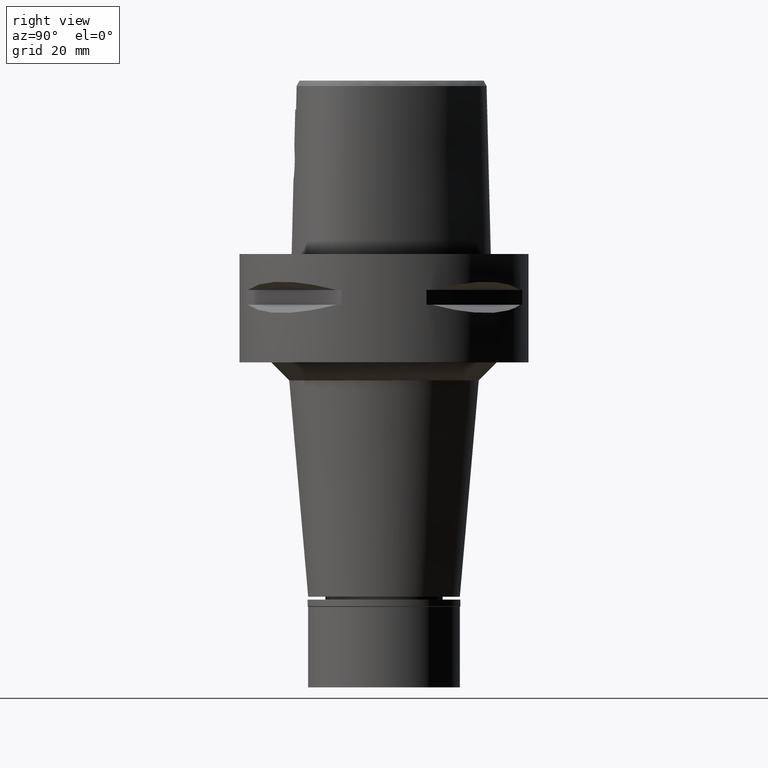
[diagram: clean part render]
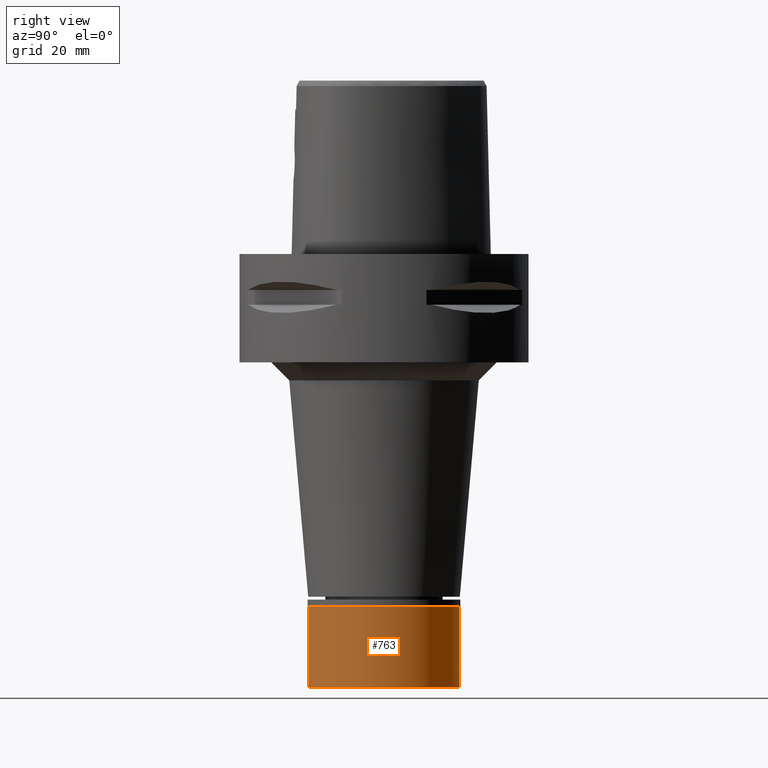
[diagram: same view with one face highlighted and labeled with its STEP entity id]
A machine part, right view. The second image highlights one B-rep face of the part: STEP entity #763.
In plain terms, the highlighted cylindrical surface (partial cylindrical patch) has radius 21 mm, axis along (0, 0, -1).
Its self-contained STEP definition (entity closure, byte-faithful):
#42 = CARTESIAN_POINT ( 'NONE',  ( 0.0000000000000000000, 21.00000000000000000, -24.29999999999999716 ) ) ;
#94 = LINE ( 'NONE', #4461, #441 ) ;
#154 = CIRCLE ( 'NONE', #4746, 21.00000000000000000 ) ;
#227 = VERTEX_POINT ( 'NONE', #3867 ) ;
#273 = EDGE_LOOP ( 'NONE', ( #1391, #4036, #2158, #2093 ) ) ;
#441 = VECTOR ( 'NONE', #3312, 1000.000000000000000 ) ;
#678 = AXIS2_PLACEMENT_3D ( 'NONE', #2369, #1617, #1546 ) ;
#763 = ADVANCED_FACE ( 'NONE', ( #5105 ), #2395, .T. ) ;
#1325 = DIRECTION ( 'NONE',  ( 0.0000000000000000000, 0.0000000000000000000, -1.000000000000000000 ) ) ;
#1391 = ORIENTED_EDGE ( 'NONE', *, *, #4291, .T. ) ;
#1451 = DIRECTION ( 'NONE',  ( 0.0000000000000000000, 0.0000000000000000000, -1.000000000000000000 ) ) ;
#1477 = DIRECTION ( 'NONE',  ( 0.0000000000000000000, 1.000000000000000000, 0.0000000000000000000 ) ) ;
#1535 = AXIS2_PLACEMENT_3D ( 'NONE', #2259, #3413, #3468 ) ;
#1546 = DIRECTION ( 'NONE',  ( 0.0000000000000000000, -1.000000000000000000, 0.0000000000000000000 ) ) ;
#1617 = DIRECTION ( 'NONE',  ( 0.0000000000000000000, 0.0000000000000000000, -1.000000000000000000 ) ) ;
#1676 = CARTESIAN_POINT ( 'NONE',  ( 0.0000000000000000000, -21.00000000000000000, -2.000000000000000000 ) ) ;
#1694 = LINE ( 'NONE', #4480, #2795 ) ;
#2093 = ORIENTED_EDGE ( 'NONE', *, *, #3210, .F. ) ;
#2158 = ORIENTED_EDGE ( 'NONE', *, *, #2772, .T. ) ;
#2241 = VERTEX_POINT ( 'NONE', #1676 ) ;
#2259 = CARTESIAN_POINT ( 'NONE',  ( 0.0000000000000000000, 0.0000000000000000000, -24.29999999999999716 ) ) ;
#2369 = CARTESIAN_POINT ( 'NONE',  ( 0.0000000000000000000, 0.0000000000000000000, 0.0000000000000000000 ) ) ;
#2395 = CYLINDRICAL_SURFACE ( 'NONE', #678, 21.00000000000000000 ) ;
#2610 = VERTEX_POINT ( 'NONE', #42 ) ;
#2772 = EDGE_CURVE ( 'NONE', #4324, #2610, #4929, .T. ) ;
#2795 = VECTOR ( 'NONE', #1325, 1000.000000000000000 ) ;
#3209 = EDGE_CURVE ( 'NONE', #2241, #4324, #1694, .T. ) ;
#3210 = EDGE_CURVE ( 'NONE', #227, #2610, #94, .T. ) ;
#3312 = DIRECTION ( 'NONE',  ( 0.0000000000000000000, 0.0000000000000000000, -1.000000000000000000 ) ) ;
#3399 = CARTESIAN_POINT ( 'NONE',  ( 0.0000000000000000000, -21.00000000000000000, -24.29999999999999716 ) ) ;
#3413 = DIRECTION ( 'NONE',  ( 0.0000000000000000000, 0.0000000000000000000, 1.000000000000000000 ) ) ;
#3468 = DIRECTION ( 'NONE',  ( 0.0000000000000000000, -1.000000000000000000, 0.0000000000000000000 ) ) ;
#3817 = CARTESIAN_POINT ( 'NONE',  ( 0.0000000000000000000, 0.0000000000000000000, -2.000000000000000000 ) ) ;
#3867 = CARTESIAN_POINT ( 'NONE',  ( 0.0000000000000000000, 21.00000000000000000, -2.000000000000000000 ) ) ;
#4036 = ORIENTED_EDGE ( 'NONE', *, *, #3209, .T. ) ;
#4291 = EDGE_CURVE ( 'NONE', #227, #2241, #154, .T. ) ;
#4324 = VERTEX_POINT ( 'NONE', #3399 ) ;
#4461 = CARTESIAN_POINT ( 'NONE',  ( 0.0000000000000000000, 21.00000000000000000, -2.000000000000000000 ) ) ;
#4480 = CARTESIAN_POINT ( 'NONE',  ( 0.0000000000000000000, -21.00000000000000000, -2.000000000000000000 ) ) ;
#4746 = AXIS2_PLACEMENT_3D ( 'NONE', #3817, #1451, #1477 ) ;
#4929 = CIRCLE ( 'NONE', #1535, 21.00000000000000000 ) ;
#5105 = FACE_OUTER_BOUND ( 'NONE', #273, .T. ) ;